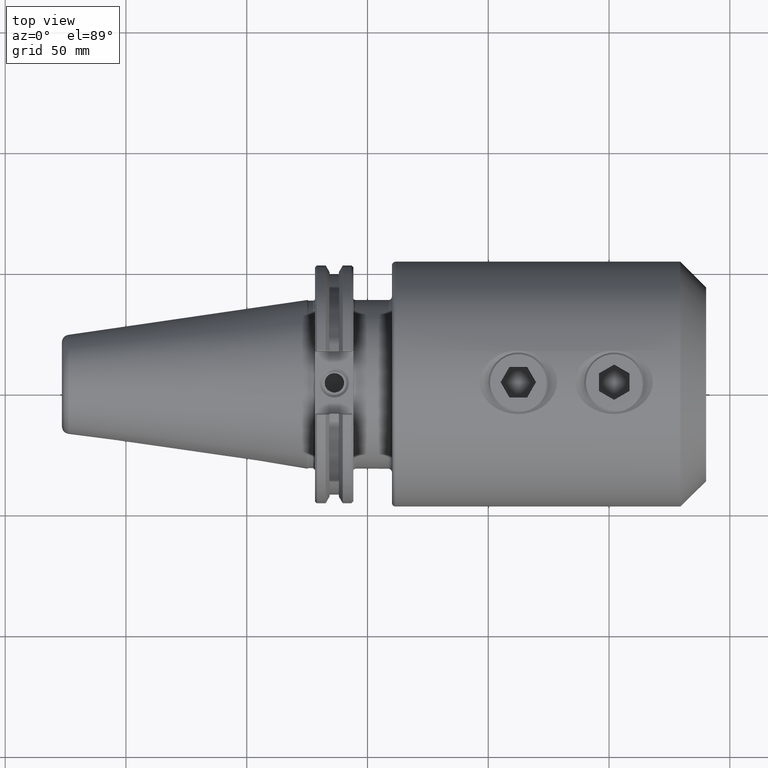
[diagram: clean part render]
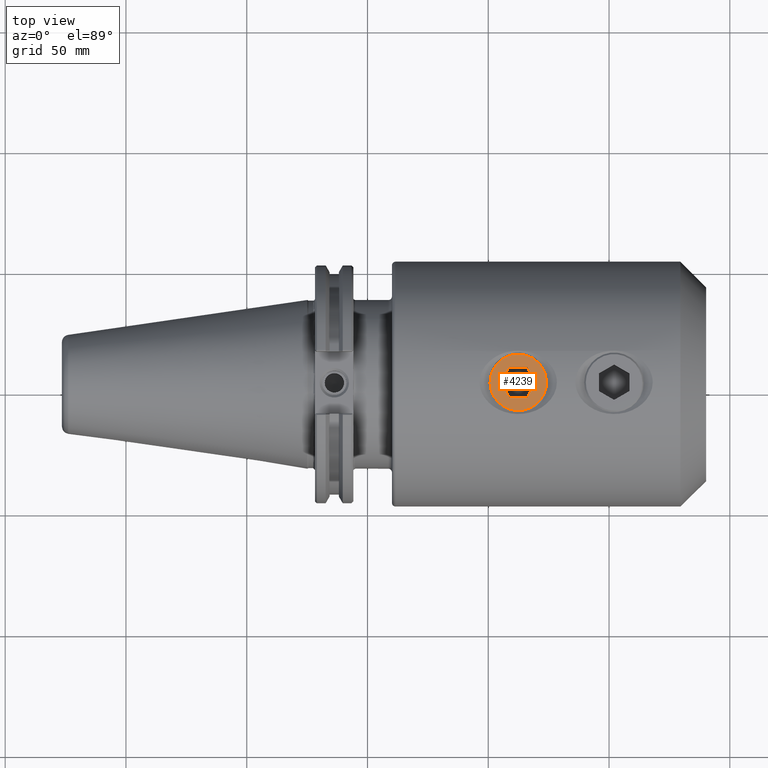
[diagram: same view with one face highlighted and labeled with its STEP entity id]
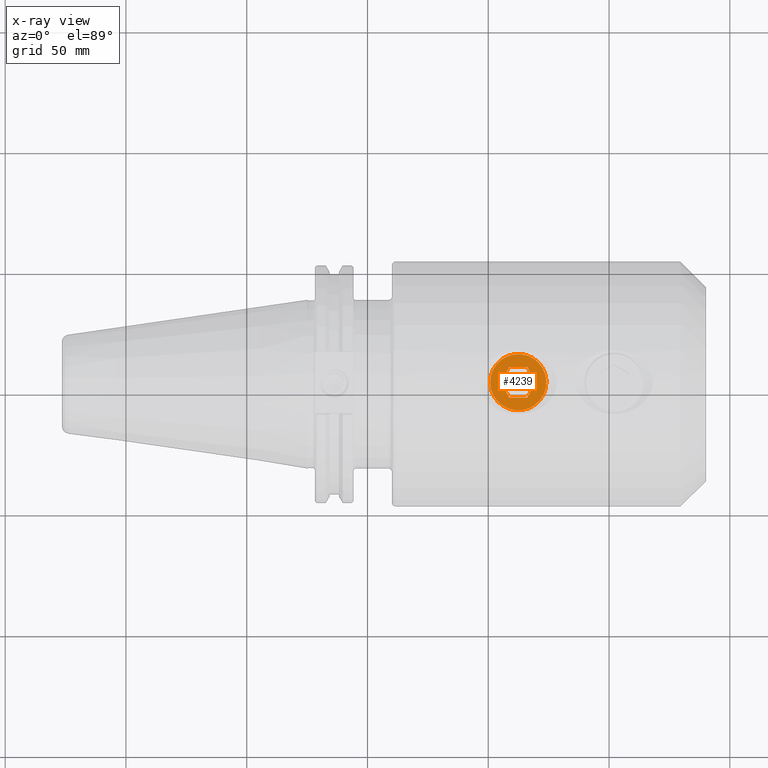
[diagram: x-ray of the same camera — body ghosted, the highlighted face saturated]
A machine part, top view. The second image highlights one B-rep face of the part: STEP entity #4239.
The next image is the same camera in x-ray: the body ghosted, the highlighted face saturated — about 0% of this face is hidden behind the body in this view.
In plain terms, the highlighted planar face has unit normal (0, 0, 1).
Its self-contained STEP definition (entity closure, byte-faithful):
#4149=CARTESIAN_POINT('',(0.46,5.633189E-017,0.0));
#4150=VERTEX_POINT('',#4149);
#4151=CARTESIAN_POINT('',(0.0,0.0,0.0));
#4152=DIRECTION('',(0.0,0.0,1.0));
#4153=DIRECTION('',(-1.0,0.0,0.0));
#4154=AXIS2_PLACEMENT_3D('',#4151,#4152,#4153);
#4155=CIRCLE('',#4154,0.46);
#4156=EDGE_CURVE('',#4150,#4150,#4155,.T.);
#4181=CARTESIAN_POINT('',(0.0,0.0,0.0));
#4182=DIRECTION('',(0.0,0.0,-1.0));
#4183=DIRECTION('',(-1.0,0.0,0.0));
#4184=AXIS2_PLACEMENT_3D('',#4181,#4182,#4183);
#4185=PLANE('',#4184);
#4186=ORIENTED_EDGE('',*,*,#4156,.F.);
#4187=EDGE_LOOP('',(#4186));
#4188=FACE_OUTER_BOUND('',#4187,.T.);
#4189=CARTESIAN_POINT('',(0.25,0.144337567297406,0.0));
#4190=VERTEX_POINT('',#4189);
#4191=CARTESIAN_POINT('',(-1.109884E-017,0.288675134594813,0.0));
#4192=VERTEX_POINT('',#4191);
#4193=CARTESIAN_POINT('',(0.25,0.144337567297406,0.0));
#4194=DIRECTION('',(-0.866025403784439,0.5,0.0));
#4195=VECTOR('',#4194,0.288675134594813);
#4196=LINE('',#4193,#4195);
#4197=EDGE_CURVE('',#4190,#4192,#4196,.T.);
#4198=ORIENTED_EDGE('',*,*,#4197,.T.);
#4199=CARTESIAN_POINT('',(-0.25,0.144337567297406,0.0));
#4200=VERTEX_POINT('',#4199);
#4201=CARTESIAN_POINT('',(-2.775558E-017,0.288675134594813,0.0));
#4202=DIRECTION('',(-0.866025403784439,-0.5,0.0));
#4203=VECTOR('',#4202,0.288675134594813);
#4204=LINE('',#4201,#4203);
#4205=EDGE_CURVE('',#4192,#4200,#4204,.T.);
#4206=ORIENTED_EDGE('',*,*,#4205,.T.);
#4207=CARTESIAN_POINT('',(-0.25,-0.144337567297407,0.0));
#4208=VERTEX_POINT('',#4207);
#4209=CARTESIAN_POINT('',(-0.25,0.144337567297406,0.0));
#4210=DIRECTION('',(0.0,-1.0,0.0));
#4211=VECTOR('',#4210,0.288675134594813);
#4212=LINE('',#4209,#4211);
#4213=EDGE_CURVE('',#4200,#4208,#4212,.T.);
#4214=ORIENTED_EDGE('',*,*,#4213,.T.);
#4215=CARTESIAN_POINT('',(-1.400270E-016,-0.288675134594813,0.0));
#4216=VERTEX_POINT('',#4215);
#4217=CARTESIAN_POINT('',(-0.25,-0.144337567297407,0.0));
#4218=DIRECTION('',(0.866025403784439,-0.5,0.0));
#4219=VECTOR('',#4218,0.288675134594813);
#4220=LINE('',#4217,#4219);
#4221=EDGE_CURVE('',#4208,#4216,#4220,.T.);
#4222=ORIENTED_EDGE('',*,*,#4221,.T.);
#4223=CARTESIAN_POINT('',(0.25,-0.144337567297407,0.0));
#4224=VERTEX_POINT('',#4223);
#4225=CARTESIAN_POINT('',(-1.387779E-016,-0.288675134594813,0.0));
#4226=DIRECTION('',(0.866025403784439,0.5,0.0));
#4227=VECTOR('',#4226,0.288675134594813);
#4228=LINE('',#4225,#4227);
#4229=EDGE_CURVE('',#4216,#4224,#4228,.T.);
#4230=ORIENTED_EDGE('',*,*,#4229,.T.);
#4231=CARTESIAN_POINT('',(0.25,-0.144337567297407,0.0));
#4232=DIRECTION('',(0.0,1.0,0.0));
#4233=VECTOR('',#4232,0.288675134594813);
#4234=LINE('',#4231,#4233);
#4235=EDGE_CURVE('',#4224,#4190,#4234,.T.);
#4236=ORIENTED_EDGE('',*,*,#4235,.T.);
#4237=EDGE_LOOP('',(#4198,#4206,#4214,#4222,#4230,#4236));
#4238=FACE_BOUND('',#4237,.T.);
#4239=ADVANCED_FACE('',(#4188,#4238),#4185,.T.);